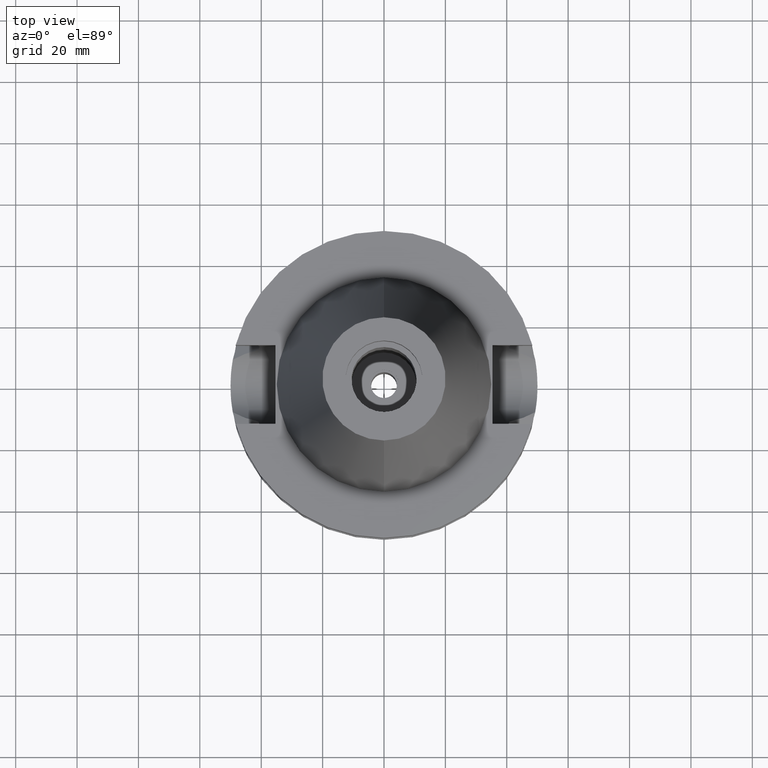
[diagram: clean part render]
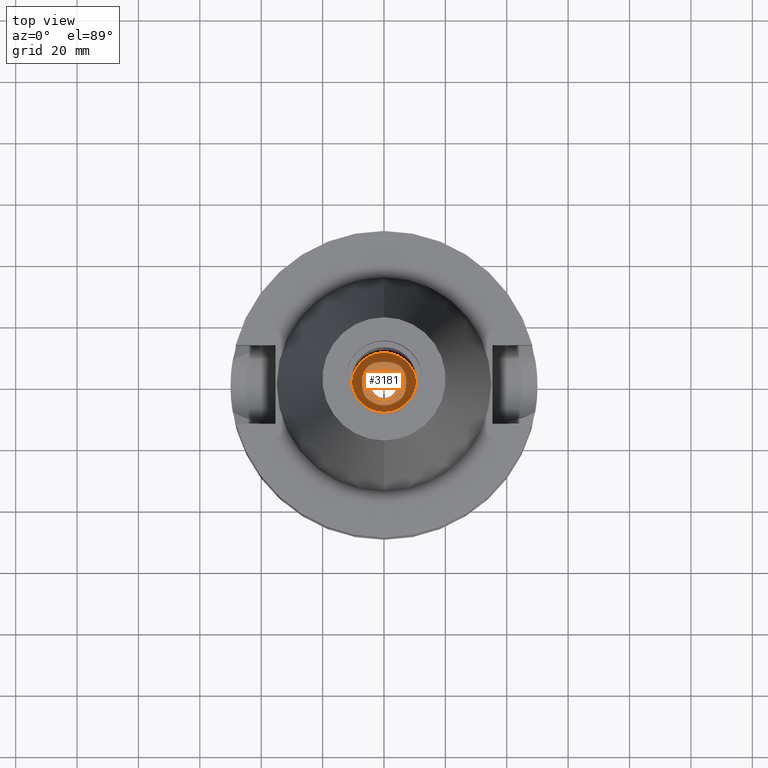
[diagram: same view with one face highlighted and labeled with its STEP entity id]
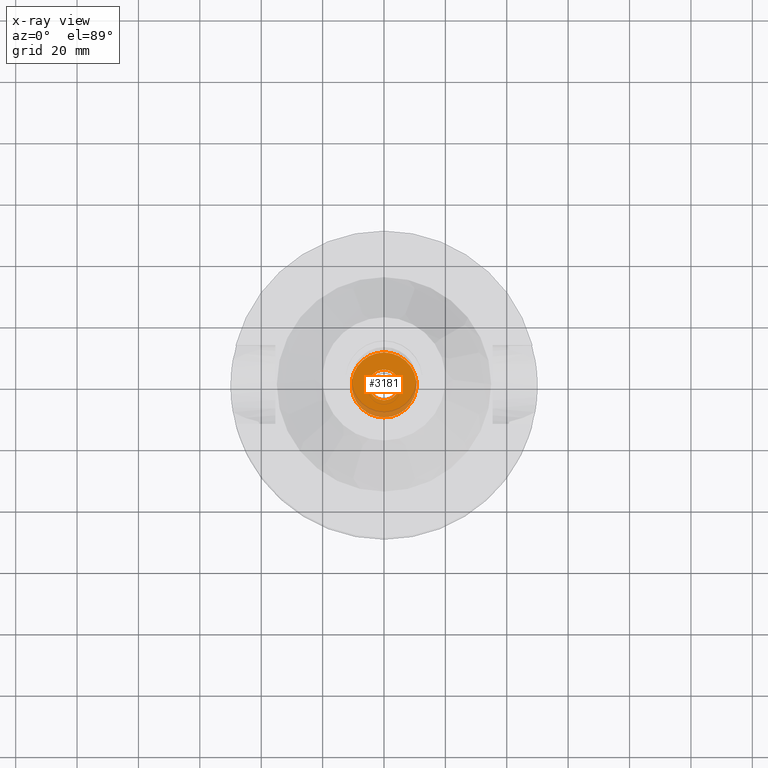
[diagram: x-ray of the same camera — body ghosted, the highlighted face saturated]
A machine part, top view. The second image highlights one B-rep face of the part: STEP entity #3181.
The next image is the same camera in x-ray: the body ghosted, the highlighted face saturated — about 14% of this face is hidden behind the body in this view.
In plain terms, the highlighted planar face has unit normal (0, 0, -1).
Its self-contained STEP definition (entity closure, byte-faithful):
#23 = CIRCLE ( 'NONE', #655, 5.000000000000000000 ) ;
#133 = VERTEX_POINT ( 'NONE', #445 ) ;
#260 = ORIENTED_EDGE ( 'NONE', *, *, #3103, .F. ) ;
#287 = VERTEX_POINT ( 'NONE', #1267 ) ;
#320 = CARTESIAN_POINT ( 'NONE',  ( 0.0000000000000000000, 2.584678301939999885E-14, -13.19999999999999929 ) ) ;
#330 = EDGE_LOOP ( 'NONE', ( #1287, #1336 ) ) ;
#426 = DIRECTION ( 'NONE',  ( 0.0000000000000000000, -1.000000000000000000, 0.0000000000000000000 ) ) ;
#445 = CARTESIAN_POINT ( 'NONE',  ( 0.0000000000000000000, 5.000000000000000000, -13.19999999999999929 ) ) ;
#474 = CIRCLE ( 'NONE', #1614, 10.59999999999999964 ) ;
#655 = AXIS2_PLACEMENT_3D ( 'NONE', #2893, #3173, #994 ) ;
#673 = DIRECTION ( 'NONE',  ( 0.0000000000000000000, 0.0000000000000000000, -1.000000000000000000 ) ) ;
#685 = FACE_BOUND ( 'NONE', #330, .T. ) ;
#717 = DIRECTION ( 'NONE',  ( 0.0000000000000000000, 0.0000000000000000000, 1.000000000000000000 ) ) ;
#730 = CARTESIAN_POINT ( 'NONE',  ( 0.0000000000000000000, -5.000000000000000000, -13.19999999999999929 ) ) ;
#745 = DIRECTION ( 'NONE',  ( 0.0000000000000000000, -1.000000000000000000, 0.0000000000000000000 ) ) ;
#754 = AXIS2_PLACEMENT_3D ( 'NONE', #2923, #717, #745 ) ;
#994 = DIRECTION ( 'NONE',  ( 0.0000000000000000000, 1.000000000000000000, 0.0000000000000000000 ) ) ;
#1073 = DIRECTION ( 'NONE',  ( 0.0000000000000000000, 0.0000000000000000000, -1.000000000000000000 ) ) ;
#1267 = CARTESIAN_POINT ( 'NONE',  ( 0.0000000000000000000, -10.59999999999999964, -13.19999999999999929 ) ) ;
#1287 = ORIENTED_EDGE ( 'NONE', *, *, #2185, .F. ) ;
#1290 = EDGE_LOOP ( 'NONE', ( #2662, #260 ) ) ;
#1336 = ORIENTED_EDGE ( 'NONE', *, *, #2288, .F. ) ;
#1431 = PLANE ( 'NONE',  #2854 ) ;
#1549 = DIRECTION ( 'NONE',  ( 0.0000000000000000000, -1.000000000000000000, 0.0000000000000000000 ) ) ;
#1614 = AXIS2_PLACEMENT_3D ( 'NONE', #320, #1073, #1549 ) ;
#1637 = CIRCLE ( 'NONE', #754, 5.000000000000000000 ) ;
#1900 = CIRCLE ( 'NONE', #2456, 10.59999999999999964 ) ;
#1931 = CARTESIAN_POINT ( 'NONE',  ( 0.0000000000000000000, 1.062993421660000041E-14, -13.19999999999999929 ) ) ;
#2168 = DIRECTION ( 'NONE',  ( 0.0000000000000000000, 1.000000000000000000, 0.0000000000000000000 ) ) ;
#2185 = EDGE_CURVE ( 'NONE', #133, #2222, #23, .T. ) ;
#2206 = EDGE_CURVE ( 'NONE', #2349, #287, #1900, .T. ) ;
#2222 = VERTEX_POINT ( 'NONE', #730 ) ;
#2288 = EDGE_CURVE ( 'NONE', #2222, #133, #1637, .T. ) ;
#2297 = CARTESIAN_POINT ( 'NONE',  ( 0.0000000000000000000, 10.59999999999999964, -13.19999999999999929 ) ) ;
#2349 = VERTEX_POINT ( 'NONE', #2297 ) ;
#2400 = CARTESIAN_POINT ( 'NONE',  ( 0.0000000000000000000, 2.584678301939999885E-14, -13.19999999999999929 ) ) ;
#2456 = AXIS2_PLACEMENT_3D ( 'NONE', #2400, #673, #2168 ) ;
#2662 = ORIENTED_EDGE ( 'NONE', *, *, #2206, .F. ) ;
#2695 = FACE_OUTER_BOUND ( 'NONE', #1290, .T. ) ;
#2854 = AXIS2_PLACEMENT_3D ( 'NONE', #1931, #3126, #426 ) ;
#2893 = CARTESIAN_POINT ( 'NONE',  ( 0.0000000000000000000, 2.584678301939999885E-14, -13.19999999999999929 ) ) ;
#2923 = CARTESIAN_POINT ( 'NONE',  ( 0.0000000000000000000, 2.584678301939999885E-14, -13.19999999999999929 ) ) ;
#3103 = EDGE_CURVE ( 'NONE', #287, #2349, #474, .T. ) ;
#3126 = DIRECTION ( 'NONE',  ( 0.0000000000000000000, 0.0000000000000000000, -1.000000000000000000 ) ) ;
#3173 = DIRECTION ( 'NONE',  ( 0.0000000000000000000, 0.0000000000000000000, 1.000000000000000000 ) ) ;
#3181 = ADVANCED_FACE ( 'NONE', ( #2695, #685 ), #1431, .F. ) ;